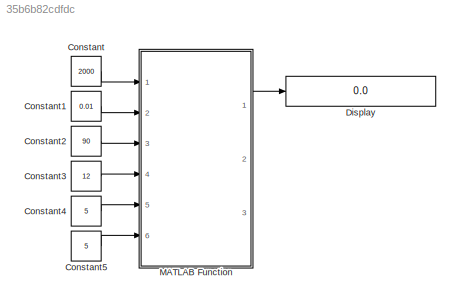
MODEL slx_35b6b82cdfdc
KIND model
CONFIG AbsTol = auto
CONFIG EnableMultiTasking = off
CONFIG FixedStep = 0.01
CONFIG MaxStep = auto
CONFIG MinStep = auto
CONFIG RelTol = 1e-3
CONFIG SampleTimeConstraint = Unconstrained
CONFIG Solver = FixedStepAuto
CONFIG SolverName = FixedStepAuto
CONFIG StartTime = 0.0
CONFIG StopTime = 1
BLOCK [Constant] Constant
  Value = 2000
BLOCK [Constant] Constant1
  Value = 0.01
BLOCK [Constant] Constant2
  Value = 90
BLOCK [Constant] Constant3
  Value = 12
BLOCK [Constant] Constant4
  Value = 5
BLOCK [Constant] Constant5
  Value = 5
BLOCK [Display] Display
  Decimation = 1
  Ports = [1]
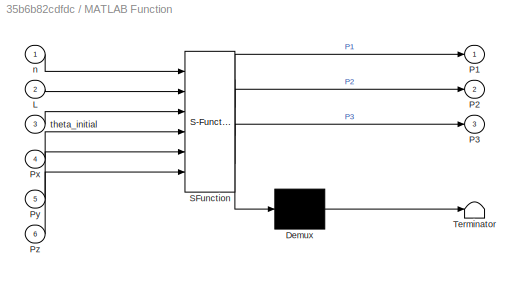
BLOCK [SubSystem] MATLAB Function
  ErrorFcn = Stateflow.Translate.translate
  PermitHierarchicalResolution = ExplicitOnly
  Ports = [6, 3]
  RequestExecContextInheritance = off
  SFBlockType = MATLAB Function
  TreatAsAtomicUnit = on
BLOCK [Demux] MATLAB Function/ Demux 
  Outputs = 1
  Ports = [1, 1]
BLOCK [S-Function] MATLAB Function/ SFunction 
  EnableBusSupport = on
  FunctionName = sf_sfun
  PortCounts = [6 4]
  Ports = [6, 4]
  SFcnIsStateOwnerBlock = off
  SFunctionDeploymentMode = off
  Tag = Stateflow S-Function FABRIK_Simulation 2
BLOCK [Terminator] MATLAB Function/ Terminator 
BLOCK [Inport] MATLAB Function/L
  IconDisplay = Port number
  Port = 2
BLOCK [Outport] MATLAB Function/P1
  IconDisplay = Port number
BLOCK [Outport] MATLAB Function/P2
  IconDisplay = Port number
  Port = 2
BLOCK [Outport] MATLAB Function/P3
  IconDisplay = Port number
  Port = 3
BLOCK [Inport] MATLAB Function/Px
  IconDisplay = Port number
  Port = 4
BLOCK [Inport] MATLAB Function/Py
  IconDisplay = Port number
  Port = 5
BLOCK [Inport] MATLAB Function/Pz
  IconDisplay = Port number
  Port = 6
BLOCK [Inport] MATLAB Function/n
  IconDisplay = Port number
BLOCK [Inport] MATLAB Function/theta_initial
  IconDisplay = Port number
  Port = 3
LINE Constant1:1 -> MATLAB Function:2
LINE Constant2:1 -> MATLAB Function:3
LINE Constant3:1 -> MATLAB Function:4
LINE Constant4:1 -> MATLAB Function:5
LINE Constant5:1 -> MATLAB Function:6
LINE Constant:1 -> MATLAB Function:1
LINE MATLAB Function:1 -> Display:1
CHART MATLAB Function states=1 transitions=1
  STATE_LABEL 'eML_blk_kernel()'
  STATE_LABEL 'SCRIPT:\nfunction [P1,P2,P3]= fcn(n,L,theta_initial,Px,Py,Pz)\n    theta = zeros(n,1);\n    t = [Px Py Pz];\n    theta(1,1) = theta_initial;\n    P = Tao_Robot_n_diem(n,L,theta);\n    P = FABRIK(L,n,P,t);\n    P1 = 0;\n    P2 = 0;\n    P3 = 0;\nend\n'
